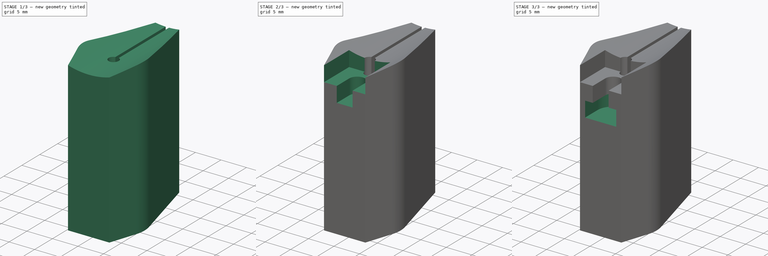
[diagram: build sequence overview — one tinted view per stage of 3, left to right]
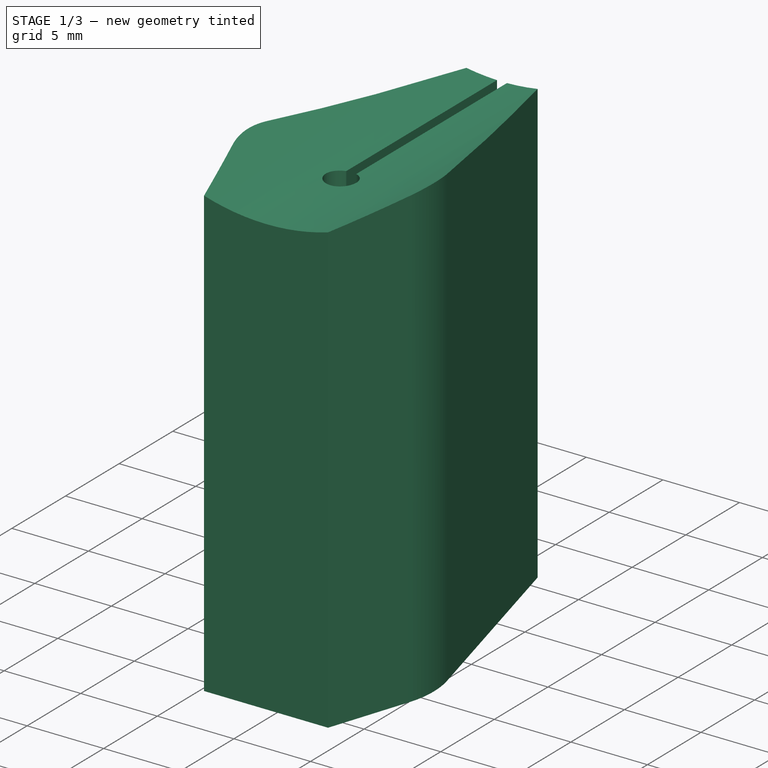
[diagram: stage 1 of 3 — iso view after this stage's code; geometry added in this stage tinted green]
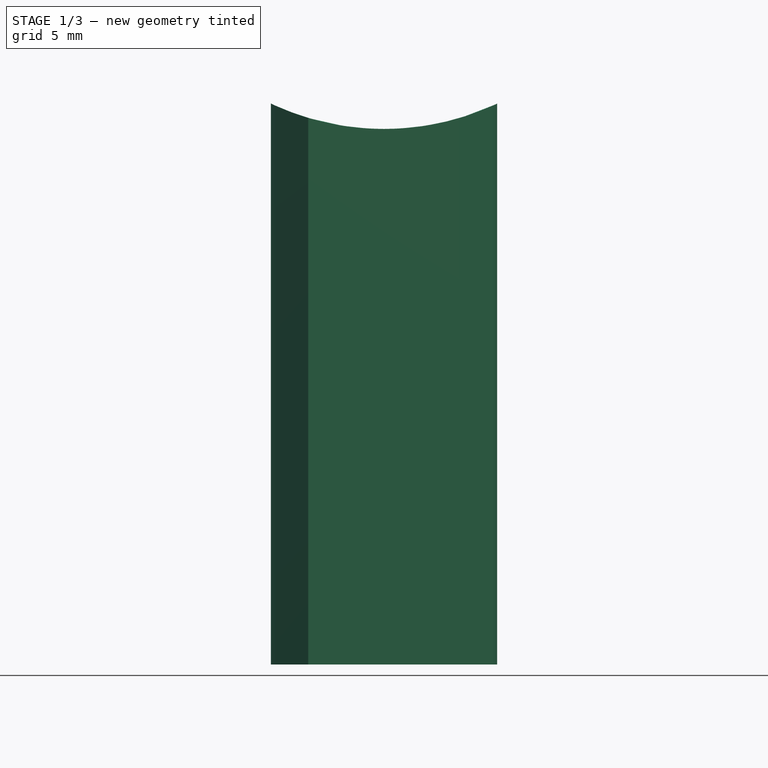
[diagram: stage 1 of 3 — front view after this stage's code; geometry added in this stage tinted green]
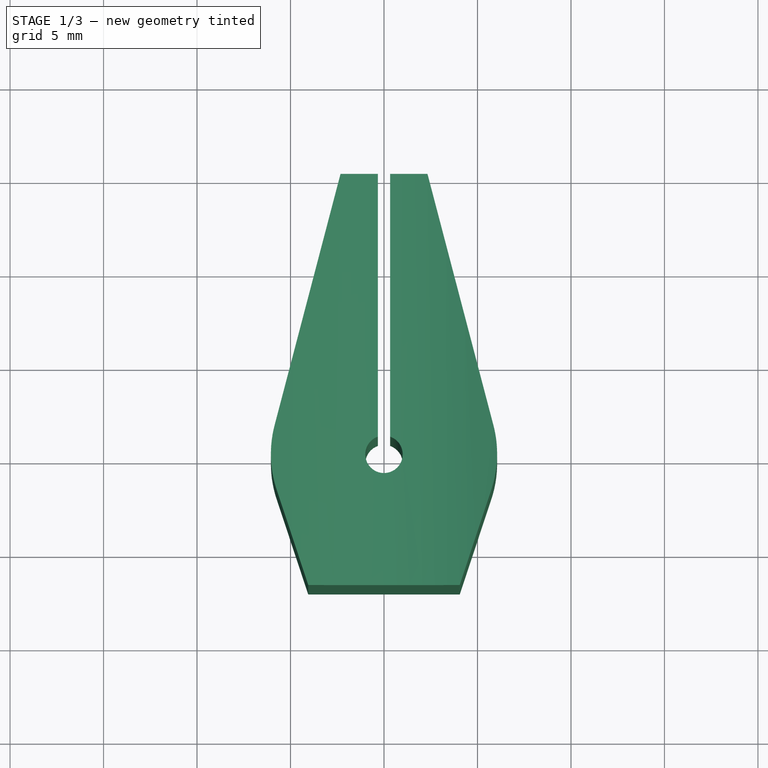
[diagram: stage 1 of 3 — top view after this stage's code; geometry added in this stage tinted green]
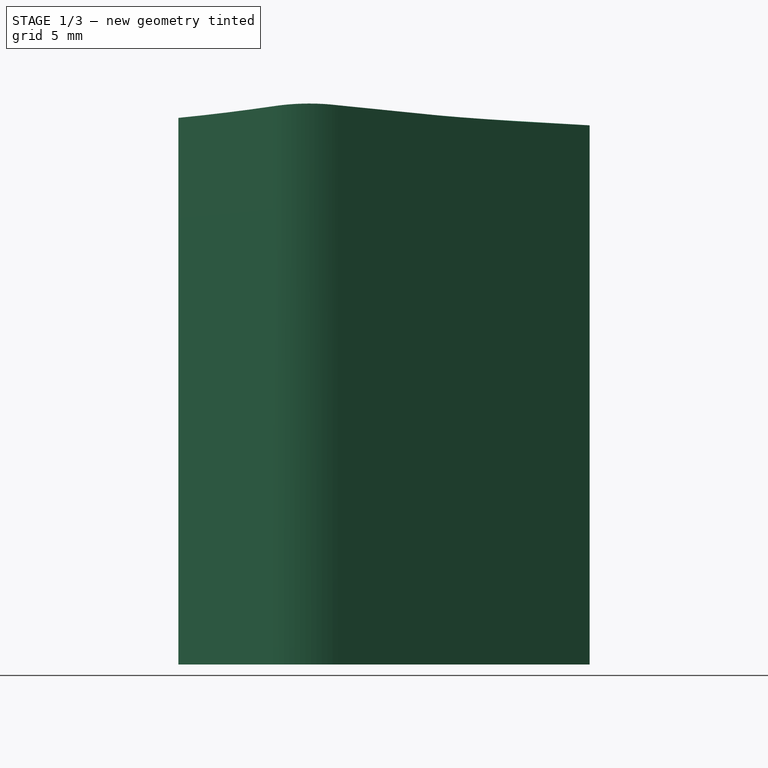
[diagram: stage 1 of 3 — right view after this stage's code; geometry added in this stage tinted green]
FCSTD DOCUMENT  (FreeCAD 0.16RUnknown)
Label: joint-i.009.bottom
License: All rights reserved
LicenseURL: http://en.wikipedia.org/wiki/All_rights_reserved
objects: Sketcher::SketchObject×6, PartDesign::Pocket×5, Part::Extrusion×1
note: 17 computed .brp shape members not serialized (recipe doc carries the construction recipe); baked Part::Feature solids carry a one-line shape summary decoded from their .brp

FEATURE [Sketcher::SketchObject] Sketch
  sketch-geometry (15):
    g0: Circle [constr] CenterX=0 CenterY=0 CenterZ=0 NormalX=0 NormalY=0 NormalZ=1 Radius=4.05
    g1: ArcOfCircle CenterX=0 CenterY=0 CenterZ=0 NormalX=0 NormalY=0 NormalZ=1 Radius=6.05 StartAngle=2.88541 EndAngle=3.46227
    g2: ArcOfCircle CenterX=0 CenterY=0 CenterZ=0 NormalX=0 NormalY=0 NormalZ=1 Radius=6.05 StartAngle=5.96251 EndAngle=6.53937
    g3: LineSegment StartX=-5.74158 StartY=-1.90703 StartZ=0 EndX=-4.05 EndY=-7 EndZ=0
    g4: LineSegment StartX=-4.05 StartY=-7 StartZ=0 EndX=4.05 EndY=-7 EndZ=0
    g5: LineSegment StartX=4.05 StartY=-7 StartZ=0 EndX=5.74158 EndY=-1.90703 EndZ=0
    g6: LineSegment StartX=-5.85256 StartY=1.533 StartZ=0 EndX=-2.325 EndY=15 EndZ=0
    g7: LineSegment StartX=-2.325 StartY=15 StartZ=0 EndX=-0.325 EndY=15 EndZ=0
    g8: LineSegment StartX=-0.325 StartY=15 StartZ=0 EndX=-0.325 EndY=0.945714 EndZ=0
    g9: LineSegment [constr] StartX=-0.325 StartY=0.945714 StartZ=0 EndX=0.325 EndY=0.945714 EndZ=0
    g10: LineSegment StartX=0.325 StartY=0.945714 StartZ=0 EndX=0.325 EndY=15 EndZ=0
    g11: LineSegment StartX=0.325 StartY=15 StartZ=0 EndX=2.325 EndY=15 EndZ=0
    g12: LineSegment StartX=2.325 StartY=15 StartZ=0 EndX=5.85256 EndY=1.533 EndZ=0
    g13: ArcOfCircle CenterX=0 CenterY=0 CenterZ=0 NormalX=0 NormalY=0 NormalZ=1 Radius=1 StartAngle=1.90181 EndAngle=7.52297
    g14: LineSegment [constr] StartX=4.05 StartY=0 StartZ=0 EndX=6.05 EndY=0 EndZ=0
  constraints (44):
    c: Coincident(g0,g-1)
    c: Radius(g0) = 4.05
    c: Coincident(g0,g1)
    c: Coincident(g0,g2)
    c: Equal(g1,g2)
    c: Coincident(g3,g4)
    c: Horizontal(g4)
    c: Coincident(g4,g5)
    c: Coincident(g1,g3)
    c: Coincident(g2,g5)
    c: Coincident(g6,g7)
    c: Horizontal(g7)
    c: Coincident(g7,g8)
    c: Vertical(g8)
    c: Coincident(g8,g9)
    c: Horizontal(g9)
    c: Coincident(g9,g10)
    c: Vertical(g10)
    c: Coincident(g10,g11)
    c: Horizontal(g11)
    c: Coincident(g11,g12)
    c: Coincident(g1,g6)
    c: Coincident(g2,g12)
    c: Equal(g8,g10)
    c: Coincident(g0,g13)
    c: Coincident(g8,g13)
    c: Coincident(g9,g13)
    c: Radius(g13) = 1
    c: DistanceX(g9,g9) = 0.65
    c: Horizontal(g14)
    c: PointOnObject(g14,g0)
    c: PointOnObject(g14,g2)
    c: PointOnObject(g14,g-1)
    c: DistanceX(g14,g14) = 2
    c: DistanceX(g4,g4) = 8.1
    c: Tangent(g3,g1)
    c: Tangent(g5,g2)
    c: Equal(g3,g5)
    c: DistanceY(g4,g-1) = 7
    c: Tangent(g6,g1)
    c: Tangent(g12,g2)
    c: Equal(g6,g12)
    c: DistanceX(g7,g7) = 2
    c: DistanceY(g-1,g7) = 15
FEATURE [Part::Extrusion] Extrude
  Base = -> Sketch
  Dir = (0,0,30)
  Solid = true
FEATURE [Sketcher::SketchObject] Sketch001
  ExternalGeometry = -> [Extrude]
  Placement = pos=(0,-7,0) rot=(1,0,0;1.5708rad)
  Support = -> Extrude [Face3]
  sketch-geometry (3):
    g0: LineSegment StartX=-6.05 StartY=30 StartZ=0 EndX=0 EndY=30 EndZ=0
    g1: LineSegment StartX=0 StartY=30 StartZ=0 EndX=6.05 EndY=30 EndZ=0
    g2: ArcOfCircle CenterX=0 CenterY=42.7914 CenterZ=0 NormalX=0 NormalY=0 NormalZ=1 Radius=14.15 StartAngle=4.2706 EndAngle=5.15418
  constraints (10):
    c: Horizontal(g0)
    c: Coincident(g0,g1)
    c: Horizontal(g1)
    c: PointOnObject(g0,g-2)
    c: Equal(g0,g1)
    c: PointOnObject(g0,g-3)
    c: DistanceX(g0,g1) = 12.1
    c: Coincident(g0,g2)
    c: Coincident(g1,g2)
    c: Radius(g2) = 14.15
FEATURE [PartDesign::Pocket] Pocket
  Length = 5
  Sketch = -> Sketch001
  Type = 1
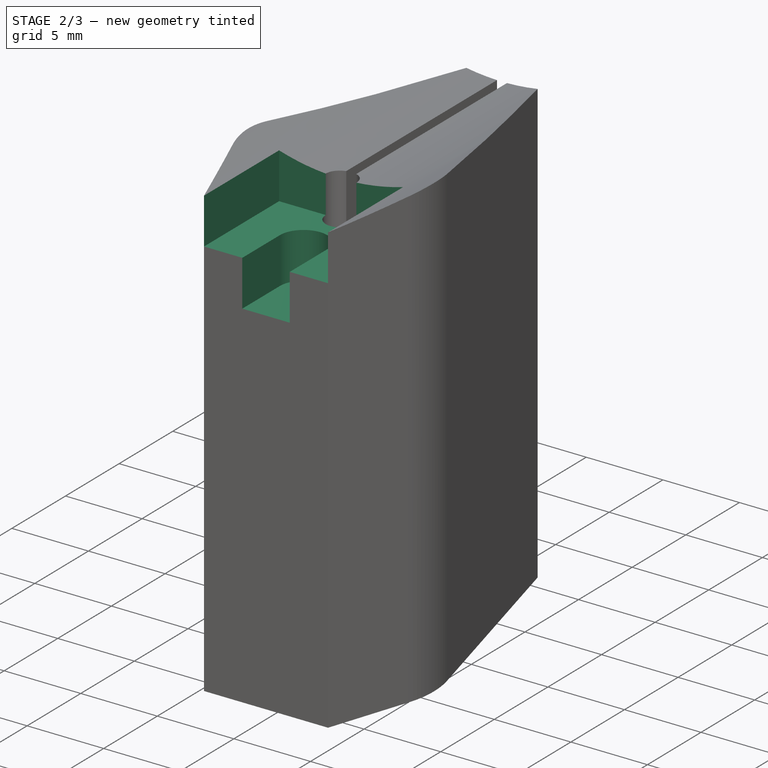
[diagram: stage 2 of 3 — iso view after this stage's code; geometry added in this stage tinted green]
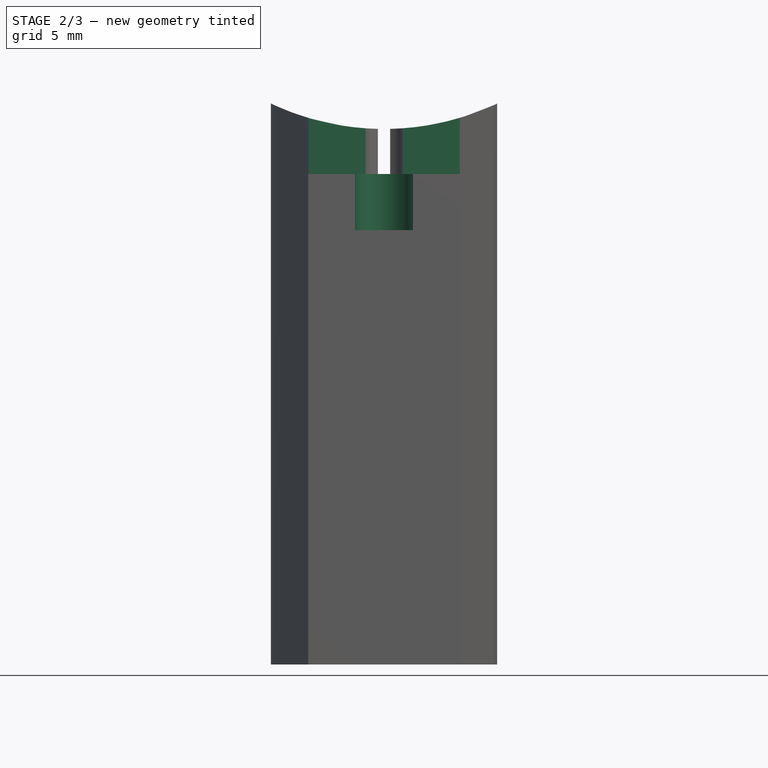
[diagram: stage 2 of 3 — front view after this stage's code; geometry added in this stage tinted green]
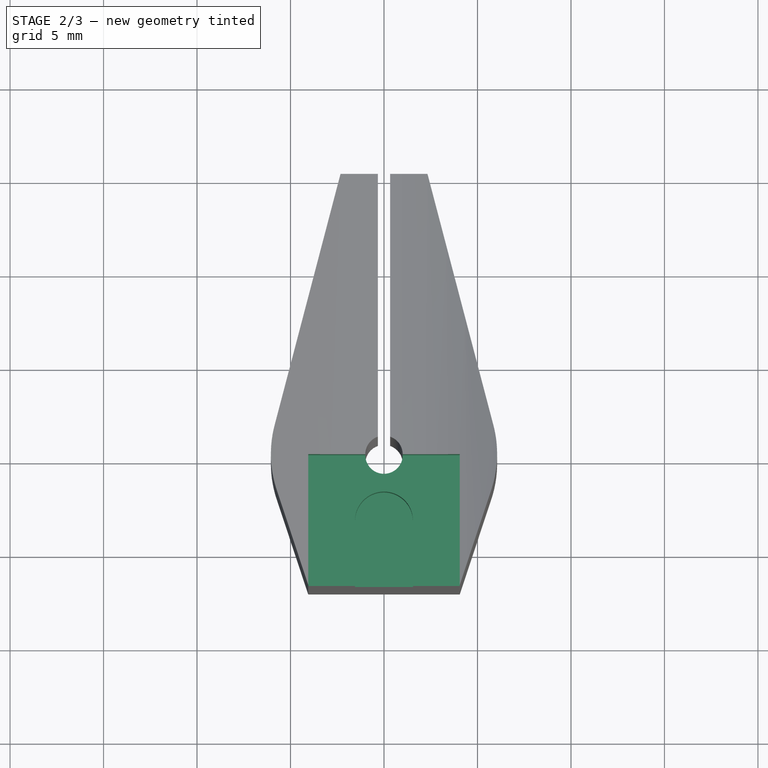
[diagram: stage 2 of 3 — top view after this stage's code; geometry added in this stage tinted green]
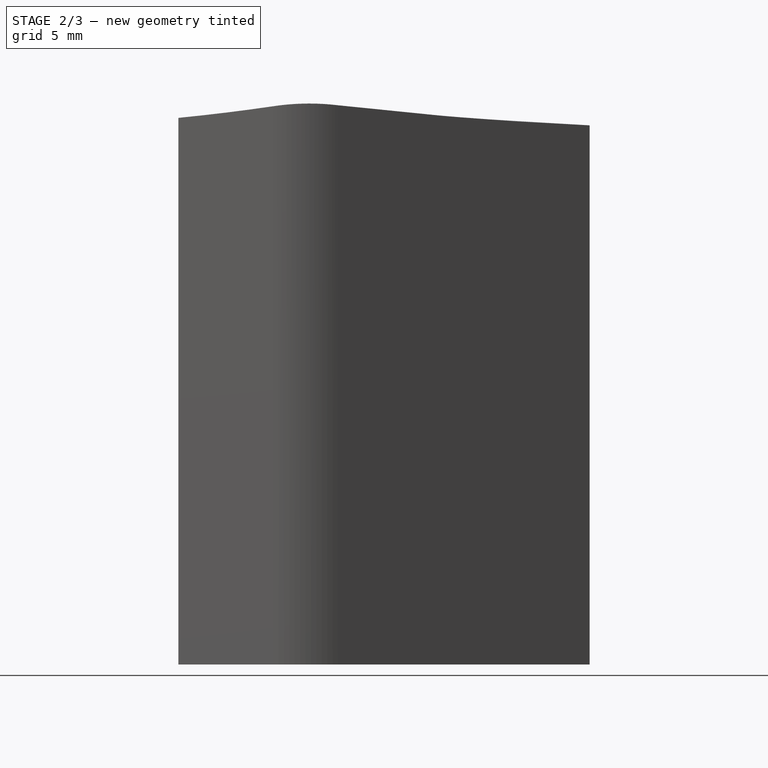
[diagram: stage 2 of 3 — right view after this stage's code; geometry added in this stage tinted green]
FEATURE [Sketcher::SketchObject] Sketch002
  ExternalGeometry = -> [Pocket]
  Placement = pos=(0,-7,0) rot=(1,0,0;1.5708rad)
  Support = -> Pocket [Face6]
  sketch-geometry (4):
    g0: LineSegment StartX=-4.05 StartY=29.2334 StartZ=0 EndX=-4.05 EndY=26.2334 EndZ=0
    g1: LineSegment StartX=-4.05 StartY=26.2334 StartZ=0 EndX=4.05 EndY=26.2334 EndZ=0
    g2: LineSegment StartX=4.05 StartY=26.2334 StartZ=0 EndX=4.05 EndY=29.2334 EndZ=0
    g3: ArcOfCircle CenterX=0 CenterY=42.7914 CenterZ=0 NormalX=0 NormalY=0 NormalZ=1 Radius=14.15 StartAngle=4.42211 EndAngle=5.00267
  constraints (11):
    c: Vertical(g0)
    c: Coincident(g0,g1)
    c: Horizontal(g1)
    c: Coincident(g1,g2)
    c: Vertical(g2)
    c: Coincident(g0,g-3)
    c: Coincident(g2,g-3)
    c: DistanceY(g2,g2) = 3
    c: Coincident(g0,g3)
    c: Coincident(g2,g3)
    c: Equal(g3,g-3)
FEATURE [PartDesign::Pocket] Pocket001
  Length = 7
  Sketch = -> Sketch002
  Type = 0
FEATURE [Sketcher::SketchObject] Sketch003
  ExternalGeometry = -> [Pocket001]
  Placement = pos=(0,0,26.2334) rot=(0,0,1;0rad)
  Support = -> Pocket001 [Face17]
  sketch-geometry (7):
    g0: LineSegment [constr] StartX=-4.05 StartY=0 StartZ=0 EndX=3e-11 EndY=-3.5 EndZ=0
    g1: LineSegment [constr] StartX=3e-11 StartY=-3.5 StartZ=0 EndX=4.05 EndY=-7 EndZ=0
    g2: ArcOfCircle CenterX=3e-11 CenterY=-3.5 CenterZ=0 NormalX=0 NormalY=0 NormalZ=1 Radius=1.55 StartAngle=0 EndAngle=3.14159
    g3: LineSegment StartX=-1.55 StartY=-3.5 StartZ=0 EndX=-1.55 EndY=-7 EndZ=0
    g4: LineSegment StartX=-1.55 StartY=-7 StartZ=0 EndX=1.55 EndY=-7 EndZ=0
    g5: LineSegment StartX=1.55 StartY=-7 StartZ=0 EndX=1.55 EndY=-3.5 EndZ=0
    g6: LineSegment [constr] StartX=-1.55 StartY=-3.5 StartZ=0 EndX=1.55 EndY=-3.5 EndZ=0
  constraints (19):
    c: Coincident(g0,g1)
    c: Coincident(g1,g-4)
    c: Coincident(g0,g-3)
    c: Equal(g0,g1)
    c: Parallel(g0,g1)
    c: Coincident(g0,g2)
    c: Vertical(g3)
    c: Coincident(g3,g4)
    c: Horizontal(g4)
    c: Coincident(g4,g5)
    c: Vertical(g5)
    c: Coincident(g2,g5)
    c: Coincident(g2,g3)
    c: PointOnObject(g4,g-4)
    c: Horizontal(g6)
    c: Coincident(g2,g6)
    c: Coincident(g2,g6)
    c: PointOnObject(g0,g6)
    c: Radius(g2) = 1.55
FEATURE [PartDesign::Pocket] Pocket002
  Length = 3
  Sketch = -> Sketch003
  Type = 0
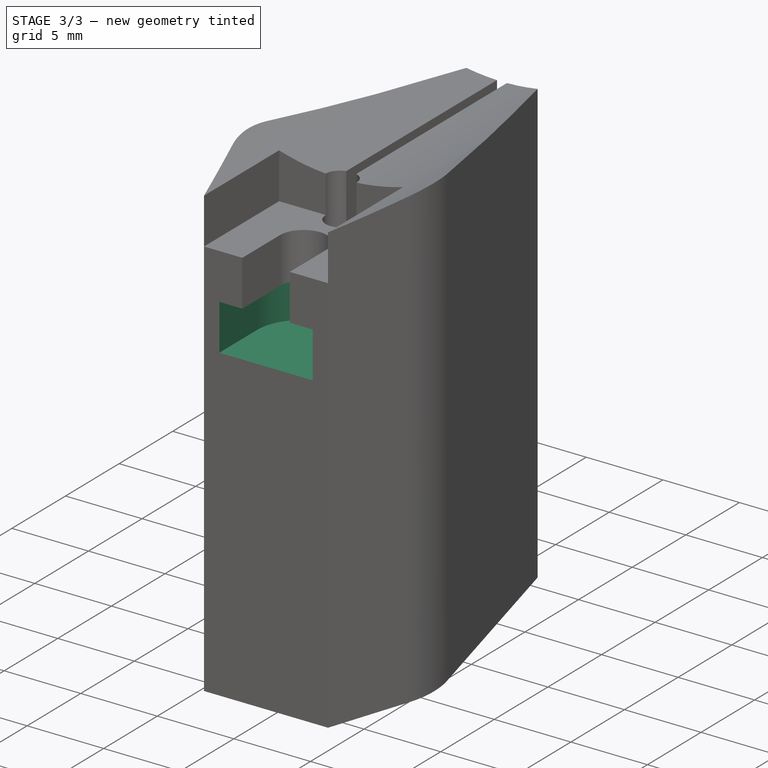
[diagram: stage 3 of 3 — iso view after this stage's code; geometry added in this stage tinted green]
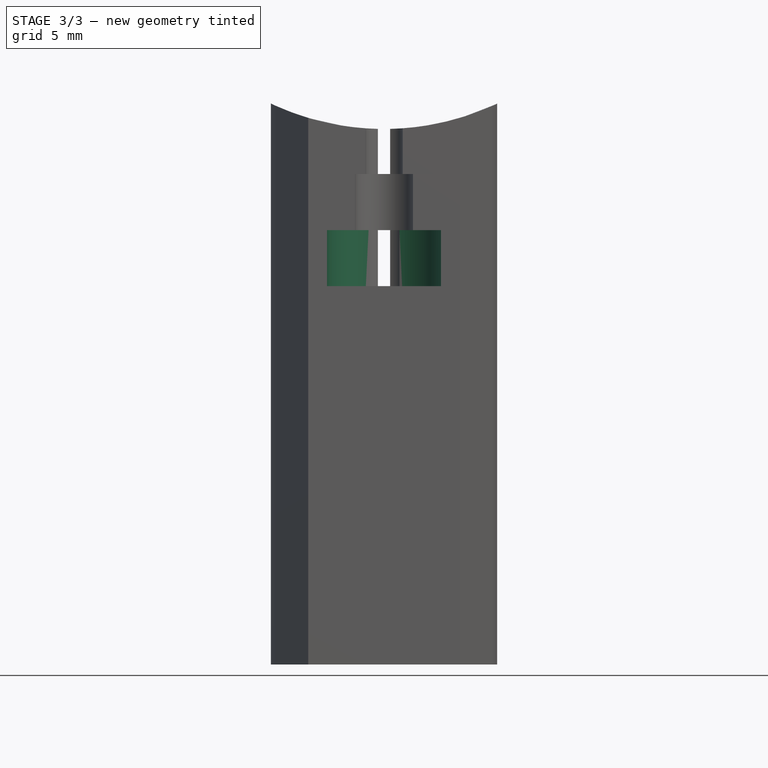
[diagram: stage 3 of 3 — front view after this stage's code; geometry added in this stage tinted green]
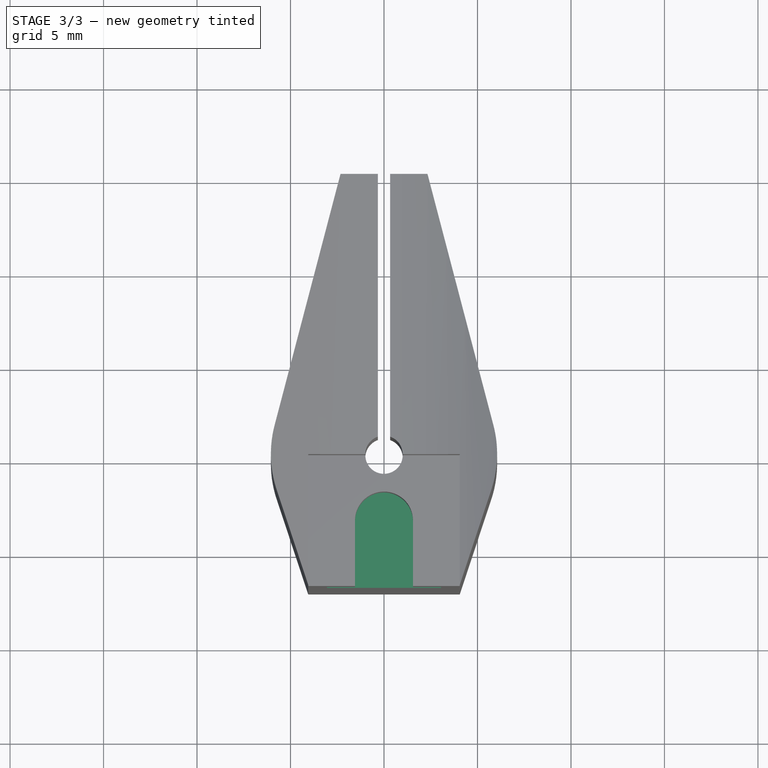
[diagram: stage 3 of 3 — top view after this stage's code; geometry added in this stage tinted green]
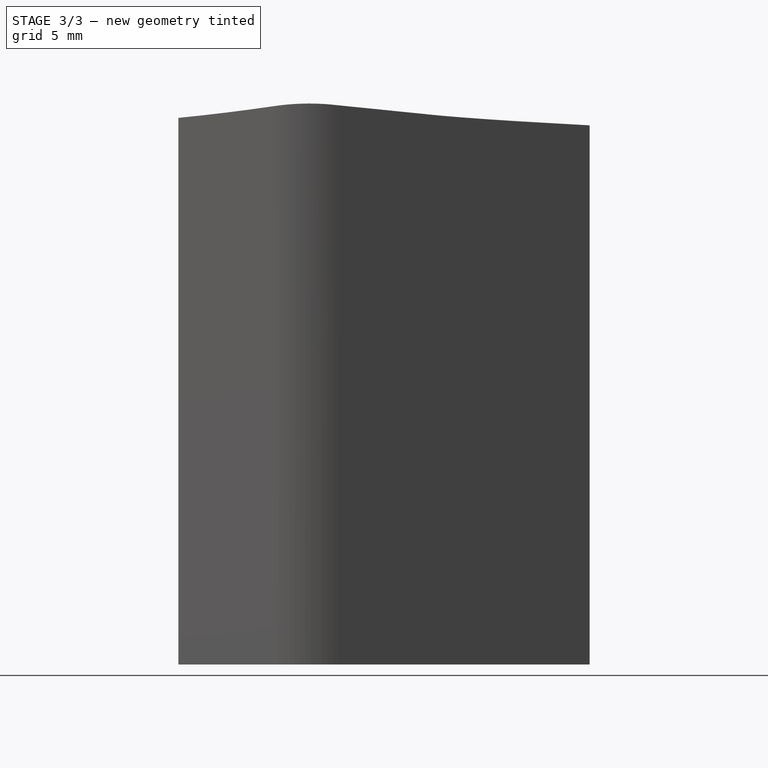
[diagram: stage 3 of 3 — right view after this stage's code; geometry added in this stage tinted green]
FEATURE [Sketcher::SketchObject] Sketch004
  ExternalGeometry = -> [Pocket002]
  Placement = pos=(0,0,23.2334) rot=(0,0,1;0rad)
  Support = -> Pocket002 [Face19]
  sketch-geometry (6):
    g0: LineSegment [constr] StartX=-3.05 StartY=-3.5 StartZ=0 EndX=-1.55 EndY=-3.5 EndZ=0
    g1: LineSegment [constr] StartX=1.55 StartY=-3.5 StartZ=0 EndX=3.05 EndY=-3.5 EndZ=0
    g2: ArcOfCircle CenterX=3e-11 CenterY=-3.5 CenterZ=0 NormalX=0 NormalY=0 NormalZ=1 Radius=3.05 StartAngle=0 EndAngle=3.14159
    g3: LineSegment StartX=-3.05 StartY=-3.5 StartZ=0 EndX=-3.05 EndY=-7 EndZ=0
    g4: LineSegment StartX=-3.05 StartY=-7 StartZ=0 EndX=3.05 EndY=-7 EndZ=0
    g5: LineSegment StartX=3.05 StartY=-7 StartZ=0 EndX=3.05 EndY=-3.5 EndZ=0
  constraints (16):
    c: Horizontal(g0)
    c: Horizontal(g1)
    c: Coincident(g0,g-3)
    c: Coincident(g1,g-3)
    c: Coincident(g2,g-3)
    c: Coincident(g0,g2)
    c: Coincident(g1,g2)
    c: Radius(g2) = 3.05
    c: Vertical(g3)
    c: Coincident(g3,g4)
    c: Horizontal(g4)
    c: Coincident(g4,g5)
    c: Vertical(g5)
    c: Coincident(g1,g5)
    c: Coincident(g0,g3)
    c: PointOnObject(g-4,g4)
FEATURE [PartDesign::Pocket] Pocket003
  Length = 3
  Sketch = -> Sketch004
  Type = 0
FEATURE [Sketcher::SketchObject] Sketch005
  Placement = pos=(0,0,0) rot=(1,0,0;3.14159rad)
  Support = -> Pocket003 [Face2]
  sketch-geometry (1):
    g0: Circle CenterX=0 CenterY=0 CenterZ=0 NormalX=0 NormalY=0 NormalZ=1 Radius=4.05
  constraints (2):
    c: Coincident(g0,g-1)
    c: Radius(g0) = 4.05
FEATURE [PartDesign::Pocket] Pocket004
  Length = 18
  Sketch = -> Sketch005
  Type = 0
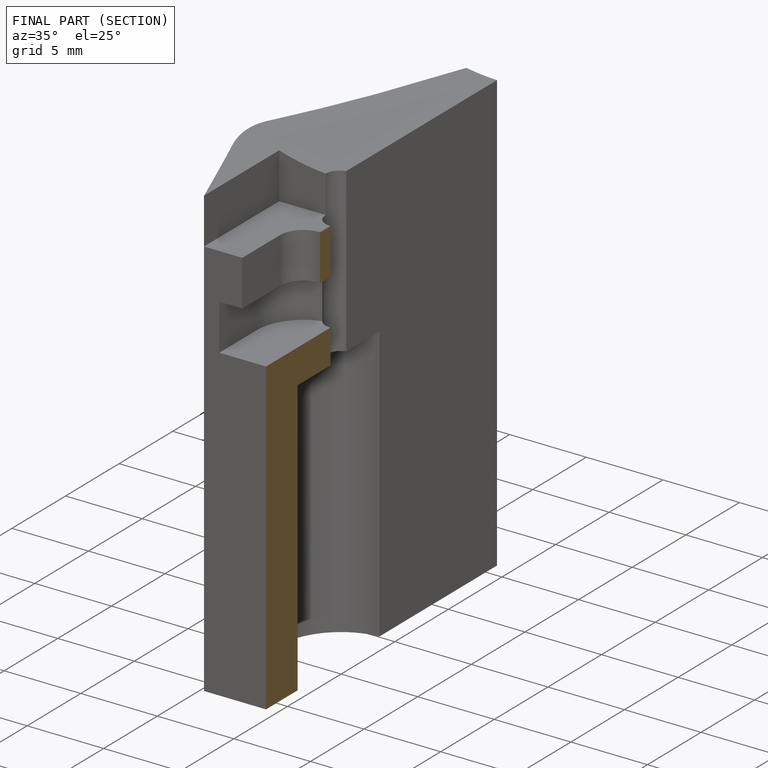
[diagram: finished part — half-section view (interior)]
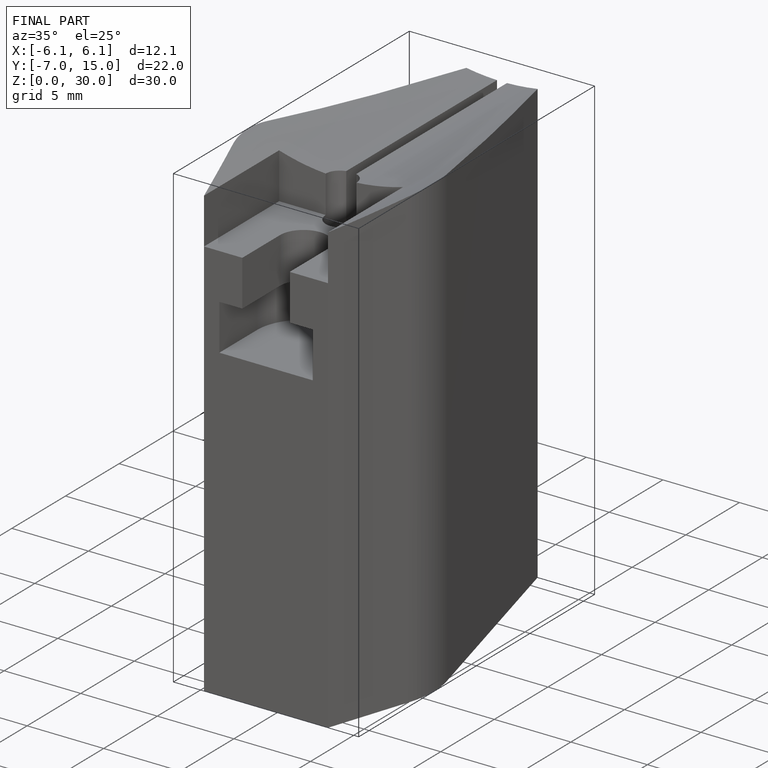
[diagram: finished part — iso view with bounding-box wireframe]
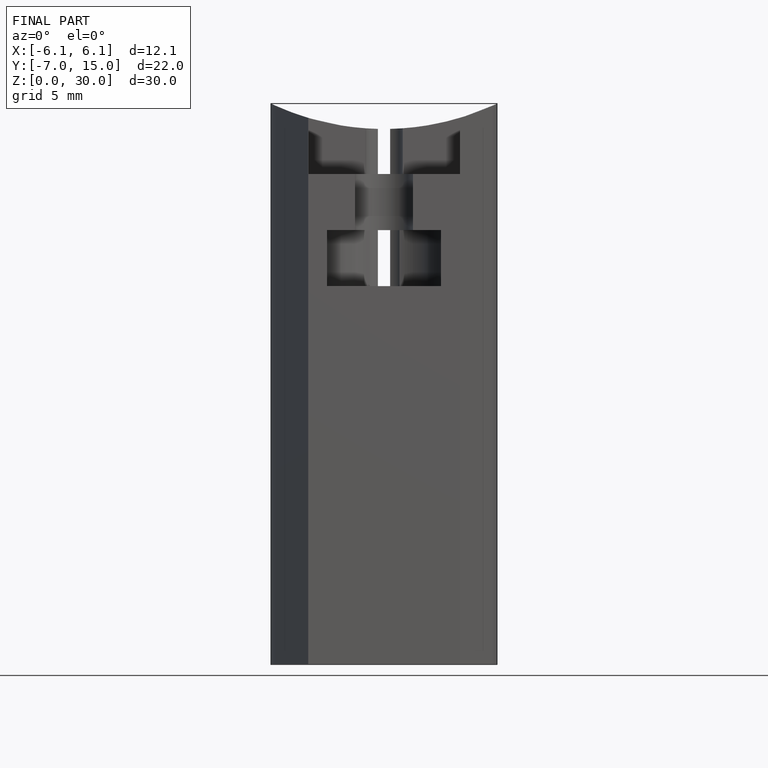
[diagram: finished part — front view with bounding-box wireframe]
